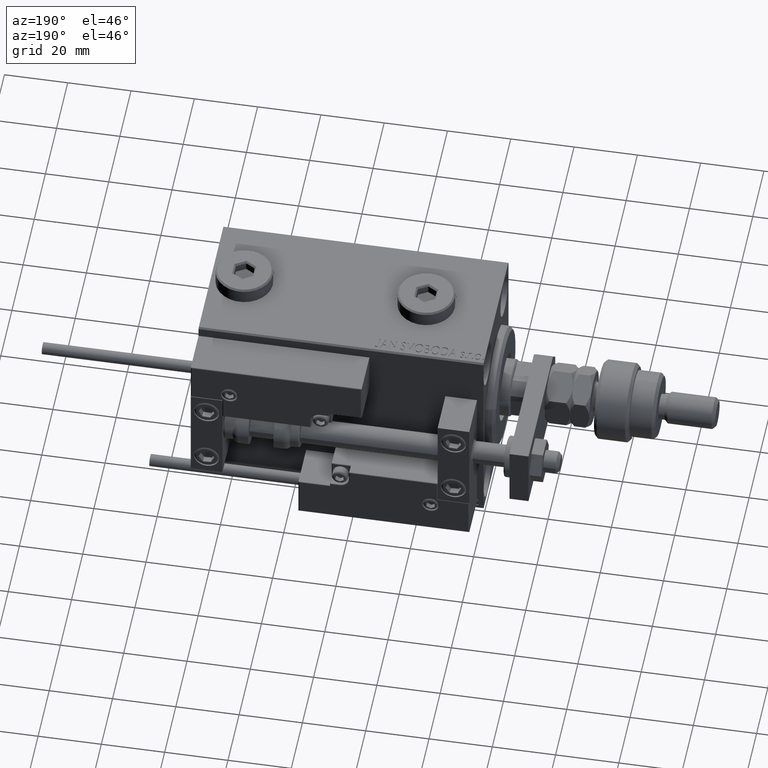
[diagram: clean part render]
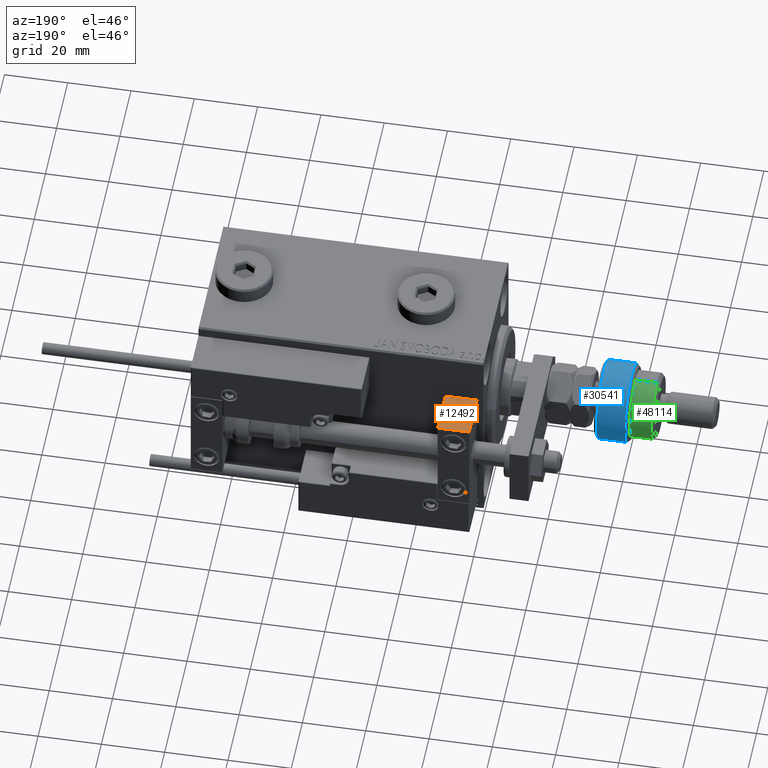
[diagram: same view with three faces highlighted in distinct colors, each labeled with its STEP entity id]
A machine part, auxiliary view with three faces highlighted in distinct colors.
Their STEP definitions:

[orange] entity #12492 — the highlighted planar face has unit normal (0, 0, 1).
#2145 = VECTOR ( 'NONE', #54161, 1000.000000000000000 ) ;
#4183 = CARTESIAN_POINT ( 'NONE',  ( 0.000000000000000000, -7.000000000000000000, -16.00000000000000711 ) ) ;
#4486 = DIRECTION ( 'NONE',  ( -1.000000000000000000, -0.000000000000000000, -0.000000000000000000 ) ) ;
#6112 = VECTOR ( 'NONE', #33984, 1000.000000000000000 ) ;
#7922 = CARTESIAN_POINT ( 'NONE',  ( 0.000000000000000000, 7.000000000000000000, -16.00000000000000711 ) ) ;
#8345 = DIRECTION ( 'NONE',  ( 0.000000000000000000, 0.000000000000000000, -1.000000000000000000 ) ) ;
#10513 = DIRECTION ( 'NONE',  ( 0.000000000000000000, -1.000000000000000000, 0.000000000000000000 ) ) ;
#11746 = EDGE_CURVE ( 'NONE', #48209, #28367, #23168, .T. ) ;
#12492 = ADVANCED_FACE ( 'NONE', ( #20453 ), #29247, .T. ) ;
#14976 = CARTESIAN_POINT ( 'NONE',  ( 10.00000000000000000, -7.000000000000000000, -16.00000000000000711 ) ) ;
#15302 = CARTESIAN_POINT ( 'NONE',  ( 10.00000000000000000, 7.000000000000000000, -16.00000000000000711 ) ) ;
#18120 = ORIENTED_EDGE ( 'NONE', *, *, #11746, .T. ) ;
#19042 = CARTESIAN_POINT ( 'NONE',  ( 10.00000000000000000, 7.000000000000000000, -16.00000000000000711 ) ) ;
#19156 = EDGE_LOOP ( 'NONE', ( #19934, #45872, #18120, #46788 ) ) ;
#19934 = ORIENTED_EDGE ( 'NONE', *, *, #19992, .F. ) ;
#19992 = EDGE_CURVE ( 'NONE', #33351, #44730, #45647, .T. ) ;
#20453 = FACE_OUTER_BOUND ( 'NONE', #19156, .T. ) ;
#23168 = LINE ( 'NONE', #19042, #34456 ) ;
#25122 = DIRECTION ( 'NONE',  ( -1.000000000000000000, 0.000000000000000000, -0.000000000000000000 ) ) ;
#26539 = AXIS2_PLACEMENT_3D ( 'NONE', #46020, #8345, #25122 ) ;
#28367 = VERTEX_POINT ( 'NONE', #14976 ) ;
#28619 = CARTESIAN_POINT ( 'NONE',  ( 0.000000000000000000, 7.000000000000000000, -16.00000000000000711 ) ) ;
#29247 = PLANE ( 'NONE',  #26539 ) ;
#33351 = VERTEX_POINT ( 'NONE', #7922 ) ;
#33653 = LINE ( 'NONE', #50418, #54216 ) ;
#33984 = DIRECTION ( 'NONE',  ( -1.000000000000000000, -0.000000000000000000, -0.000000000000000000 ) ) ;
#34456 = VECTOR ( 'NONE', #10513, 1000.000000000000000 ) ;
#41968 = LINE ( 'NONE', #46351, #6112 ) ;
#42475 = EDGE_CURVE ( 'NONE', #28367, #44730, #33653, .T. ) ;
#44730 = VERTEX_POINT ( 'NONE', #4183 ) ;
#45647 = LINE ( 'NONE', #28619, #2145 ) ;
#45872 = ORIENTED_EDGE ( 'NONE', *, *, #49821, .F. ) ;
#46020 = CARTESIAN_POINT ( 'NONE',  ( 10.00000000000000000, 7.000000000000000000, -16.00000000000000711 ) ) ;
#46351 = CARTESIAN_POINT ( 'NONE',  ( 10.00000000000000000, 7.000000000000000000, -16.00000000000000711 ) ) ;
#46788 = ORIENTED_EDGE ( 'NONE', *, *, #42475, .T. ) ;
#48209 = VERTEX_POINT ( 'NONE', #15302 ) ;
#49821 = EDGE_CURVE ( 'NONE', #48209, #33351, #41968, .T. ) ;
#50418 = CARTESIAN_POINT ( 'NONE',  ( 10.00000000000000000, -7.000000000000000000, -16.00000000000000711 ) ) ;
#54161 = DIRECTION ( 'NONE',  ( 0.000000000000000000, -1.000000000000000000, 0.000000000000000000 ) ) ;
#54216 = VECTOR ( 'NONE', #4486, 1000.000000000000000 ) ;

[blue] entity #30541 — the highlighted cylindrical surface (partial cylindrical patch) has radius 12.5 mm, axis along (1, -0, -0).
#672 = ORIENTED_EDGE ( 'NONE', *, *, #10792, .T. ) ;
#1867 = CIRCLE ( 'NONE', #4534, 12.50000000000000000 ) ;
#3263 = ORIENTED_EDGE ( 'NONE', *, *, #11316, .T. ) ;
#4534 = AXIS2_PLACEMENT_3D ( 'NONE', #48174, #10507, #29927 ) ;
#4589 = CARTESIAN_POINT ( 'NONE',  ( 0.000000000000000000, 0.000000000000000000, 0.9999999999999956701 ) ) ;
#4676 = EDGE_CURVE ( 'NONE', #46402, #5895, #13086, .T. ) ;
#4741 = ORIENTED_EDGE ( 'NONE', *, *, #46028, .T. ) ;
#5222 = CYLINDRICAL_SURFACE ( 'NONE', #51108, 12.50000000000000000 ) ;
#5895 = VERTEX_POINT ( 'NONE', #7853 ) ;
#6833 = CIRCLE ( 'NONE', #21741, 12.50000000000000000 ) ;
#7853 = CARTESIAN_POINT ( 'NONE',  ( -11.22497216032182088, -5.500000000000007105, 10.00000000000000000 ) ) ;
#8998 = VECTOR ( 'NONE', #49291, 1000.000000000000000 ) ;
#10159 = DIRECTION ( 'NONE',  ( -1.000000000000000000, 0.000000000000000000, 0.000000000000000000 ) ) ;
#10507 = DIRECTION ( 'NONE',  ( -0.000000000000000000, -0.000000000000000000, 1.000000000000000000 ) ) ;
#10732 = ORIENTED_EDGE ( 'NONE', *, *, #4676, .T. ) ;
#10792 = EDGE_CURVE ( 'NONE', #16124, #29325, #1867, .T. ) ;
#11316 = EDGE_CURVE ( 'NONE', #5895, #16124, #30391, .T. ) ;
#12478 = VECTOR ( 'NONE', #47156, 1000.000000000000000 ) ;
#13086 = CIRCLE ( 'NONE', #53492, 12.50000000000000000 ) ;
#14274 = CARTESIAN_POINT ( 'NONE',  ( 0.000000000000000000, 0.000000000000000000, 11.00000000000000000 ) ) ;
#15739 = LINE ( 'NONE', #32521, #8998 ) ;
#16124 = VERTEX_POINT ( 'NONE', #34573 ) ;
#18796 = DIRECTION ( 'NONE',  ( 1.000000000000000000, 0.000000000000000000, 0.000000000000000000 ) ) ;
#20964 = DIRECTION ( 'NONE',  ( 1.000000000000000000, 0.000000000000000000, 0.000000000000000000 ) ) ;
#21741 = AXIS2_PLACEMENT_3D ( 'NONE', #4589, #34026, #18796 ) ;
#23285 = ORIENTED_EDGE ( 'NONE', *, *, #28702, .F. ) ;
#25996 = CARTESIAN_POINT ( 'NONE',  ( -11.22497216032182088, -5.500000000000007105, 12.50000000000000000 ) ) ;
#28702 = EDGE_CURVE ( 'NONE', #46402, #43449, #15739, .T. ) ;
#28956 = DIRECTION ( 'NONE',  ( 0.000000000000000000, 0.000000000000000000, -1.000000000000000000 ) ) ;
#29325 = VERTEX_POINT ( 'NONE', #36431 ) ;
#29927 = DIRECTION ( 'NONE',  ( 1.000000000000000000, 0.000000000000000000, 0.000000000000000000 ) ) ;
#30391 = LINE ( 'NONE', #25996, #12478 ) ;
#30541 = ADVANCED_FACE ( 'NONE', ( #42898 ), #5222, .T. ) ;
#32521 = CARTESIAN_POINT ( 'NONE',  ( -11.22497216032182443, 5.500000000000000000, 12.50000000000000000 ) ) ;
#34026 = DIRECTION ( 'NONE',  ( -0.000000000000000000, -0.000000000000000000, 1.000000000000000000 ) ) ;
#34162 = CARTESIAN_POINT ( 'NONE',  ( 0.000000000000000000, 0.000000000000000000, 10.00000000000000000 ) ) ;
#34573 = CARTESIAN_POINT ( 'NONE',  ( -11.22497216032182088, -5.500000000000007105, 0.9999999999999956701 ) ) ;
#36431 = CARTESIAN_POINT ( 'NONE',  ( 12.50000000000000000, 0.000000000000000000, 0.9999999999999956701 ) ) ;
#37285 = CARTESIAN_POINT ( 'NONE',  ( -11.22497216032182443, 5.500000000000000000, 0.9999999999999956701 ) ) ;
#40700 = EDGE_LOOP ( 'NONE', ( #23285, #10732, #3263, #672, #4741 ) ) ;
#42898 = FACE_OUTER_BOUND ( 'NONE', #40700, .T. ) ;
#43449 = VERTEX_POINT ( 'NONE', #37285 ) ;
#46028 = EDGE_CURVE ( 'NONE', #29325, #43449, #6833, .T. ) ;
#46402 = VERTEX_POINT ( 'NONE', #47594 ) ;
#47156 = DIRECTION ( 'NONE',  ( -0.000000000000000000, -0.000000000000000000, -1.000000000000000000 ) ) ;
#47594 = CARTESIAN_POINT ( 'NONE',  ( -11.22497216032182443, 5.500000000000000000, 10.00000000000000000 ) ) ;
#47833 = DIRECTION ( 'NONE',  ( -0.000000000000000000, -0.000000000000000000, -1.000000000000000000 ) ) ;
#48174 = CARTESIAN_POINT ( 'NONE',  ( 0.000000000000000000, 0.000000000000000000, 0.9999999999999956701 ) ) ;
#49291 = DIRECTION ( 'NONE',  ( -0.000000000000000000, -0.000000000000000000, -1.000000000000000000 ) ) ;
#51108 = AXIS2_PLACEMENT_3D ( 'NONE', #14274, #47833, #10159 ) ;
#53492 = AXIS2_PLACEMENT_3D ( 'NONE', #34162, #28956, #20964 ) ;

[green] entity #48114 — the highlighted cylindrical surface (edge-blend (fillet) strip) has radius 10.5 mm, axis along (1, -0, -0).
#145 = VERTEX_POINT ( 'NONE', #30050 ) ;
#882 = ORIENTED_EDGE ( 'NONE', *, *, #42730, .F. ) ;
#1225 = ORIENTED_EDGE ( 'NONE', *, *, #53272, .F. ) ;
#1298 = FACE_OUTER_BOUND ( 'NONE', #33281, .T. ) ;
#1924 = ORIENTED_EDGE ( 'NONE', *, *, #45110, .T. ) ;
#1957 = VERTEX_POINT ( 'NONE', #12122 ) ;
#2451 = EDGE_CURVE ( 'NONE', #43121, #38055, #11390, .T. ) ;
#3086 = DIRECTION ( 'NONE',  ( 0.000000000000000000, 0.000000000000000000, -1.000000000000000000 ) ) ;
#3513 = CARTESIAN_POINT ( 'NONE',  ( 0.000000000000000000, 0.000000000000000000, 17.99999999999999645 ) ) ;
#3781 = DIRECTION ( 'NONE',  ( 1.000000000000000000, 0.000000000000000000, 0.000000000000000000 ) ) ;
#5857 = CARTESIAN_POINT ( 'NONE',  ( -8.944271909999159220, 5.500000000000000000, 11.00000000000000000 ) ) ;
#6989 = AXIS2_PLACEMENT_3D ( 'NONE', #10338, #27116, #19142 ) ;
#7986 = ORIENTED_EDGE ( 'NONE', *, *, #2451, .T. ) ;
#10338 = CARTESIAN_POINT ( 'NONE',  ( 0.000000000000000000, 0.000000000000000000, 11.00000000000000000 ) ) ;
#11390 = CIRCLE ( 'NONE', #6989, 10.50000000000000000 ) ;
#11602 = CARTESIAN_POINT ( 'NONE',  ( 0.000000000000000000, 0.000000000000000000, 12.50000000000000000 ) ) ;
#12122 = CARTESIAN_POINT ( 'NONE',  ( -10.50000000000000000, 0.000000000000000000, 12.50000000000000000 ) ) ;
#13027 = VECTOR ( 'NONE', #47205, 1000.000000000000000 ) ;
#13160 = LINE ( 'NONE', #18107, #15586 ) ;
#14192 = CARTESIAN_POINT ( 'NONE',  ( 0.000000000000000000, 0.000000000000000000, 19.00000000000000000 ) ) ;
#14947 = CARTESIAN_POINT ( 'NONE',  ( -10.50000000000000000, 0.000000000000000000, 19.00000000000000000 ) ) ;
#15586 = VECTOR ( 'NONE', #30742, 1000.000000000000000 ) ;
#15978 = ORIENTED_EDGE ( 'NONE', *, *, #29072, .T. ) ;
#18107 = CARTESIAN_POINT ( 'NONE',  ( 10.50000000000000000, 1.285879139104720831E-15, 19.00000000000000000 ) ) ;
#19142 = DIRECTION ( 'NONE',  ( 1.000000000000000000, 0.000000000000000000, 0.000000000000000000 ) ) ;
#23098 = CIRCLE ( 'NONE', #30124, 10.50000000000000000 ) ;
#23414 = CARTESIAN_POINT ( 'NONE',  ( -10.50000000000000000, 0.000000000000000000, 17.99999999999999645 ) ) ;
#27116 = DIRECTION ( 'NONE',  ( 0.000000000000000000, 0.000000000000000000, 1.000000000000000000 ) ) ;
#27818 = ORIENTED_EDGE ( 'NONE', *, *, #48055, .T. ) ;
#28815 = DIRECTION ( 'NONE',  ( 0.000000000000000000, 0.000000000000000000, -1.000000000000000000 ) ) ;
#29072 = EDGE_CURVE ( 'NONE', #52593, #145, #23098, .T. ) ;
#30050 = CARTESIAN_POINT ( 'NONE',  ( 10.50000000000000000, 1.285879139104720831E-15, 17.99999999999999645 ) ) ;
#30124 = AXIS2_PLACEMENT_3D ( 'NONE', #3513, #28815, #3781 ) ;
#30742 = DIRECTION ( 'NONE',  ( -0.000000000000000000, -0.000000000000000000, -1.000000000000000000 ) ) ;
#30931 = CARTESIAN_POINT ( 'NONE',  ( 10.50000000000000000, 1.285879139104720831E-15, 11.00000000000000000 ) ) ;
#32290 = LINE ( 'NONE', #14947, #38664 ) ;
#33281 = EDGE_LOOP ( 'NONE', ( #15978, #1924, #7986, #27818, #882, #1225 ) ) ;
#34306 = LINE ( 'NONE', #43362, #13027 ) ;
#35123 = CYLINDRICAL_SURFACE ( 'NONE', #41167, 10.50000000000000000 ) ;
#37491 = AXIS2_PLACEMENT_3D ( 'NONE', #11602, #3086, #54204 ) ;
#38055 = VERTEX_POINT ( 'NONE', #5857 ) ;
#38664 = VECTOR ( 'NONE', #49057, 1000.000000000000000 ) ;
#39527 = DIRECTION ( 'NONE',  ( -0.000000000000000000, -0.000000000000000000, -1.000000000000000000 ) ) ;
#39608 = CARTESIAN_POINT ( 'NONE',  ( -8.944271909999159220, 5.500000000000000000, 12.50000000000000000 ) ) ;
#41167 = AXIS2_PLACEMENT_3D ( 'NONE', #14192, #39527, #51880 ) ;
#42730 = EDGE_CURVE ( 'NONE', #1957, #50294, #47968, .T. ) ;
#43121 = VERTEX_POINT ( 'NONE', #30931 ) ;
#43362 = CARTESIAN_POINT ( 'NONE',  ( -8.944271909999159220, 5.500000000000000000, 19.00000000000000000 ) ) ;
#45110 = EDGE_CURVE ( 'NONE', #145, #43121, #13160, .T. ) ;
#47205 = DIRECTION ( 'NONE',  ( 0.000000000000000000, 0.000000000000000000, 1.000000000000000000 ) ) ;
#47968 = CIRCLE ( 'NONE', #37491, 10.50000000000000000 ) ;
#48055 = EDGE_CURVE ( 'NONE', #38055, #50294, #34306, .T. ) ;
#48114 = ADVANCED_FACE ( 'NONE', ( #1298 ), #35123, .T. ) ;
#49057 = DIRECTION ( 'NONE',  ( -0.000000000000000000, -0.000000000000000000, -1.000000000000000000 ) ) ;
#50294 = VERTEX_POINT ( 'NONE', #39608 ) ;
#51880 = DIRECTION ( 'NONE',  ( -1.000000000000000000, 0.000000000000000000, 0.000000000000000000 ) ) ;
#52593 = VERTEX_POINT ( 'NONE', #23414 ) ;
#53272 = EDGE_CURVE ( 'NONE', #52593, #1957, #32290, .T. ) ;
#54204 = DIRECTION ( 'NONE',  ( -1.000000000000000000, 0.000000000000000000, 0.000000000000000000 ) ) ;